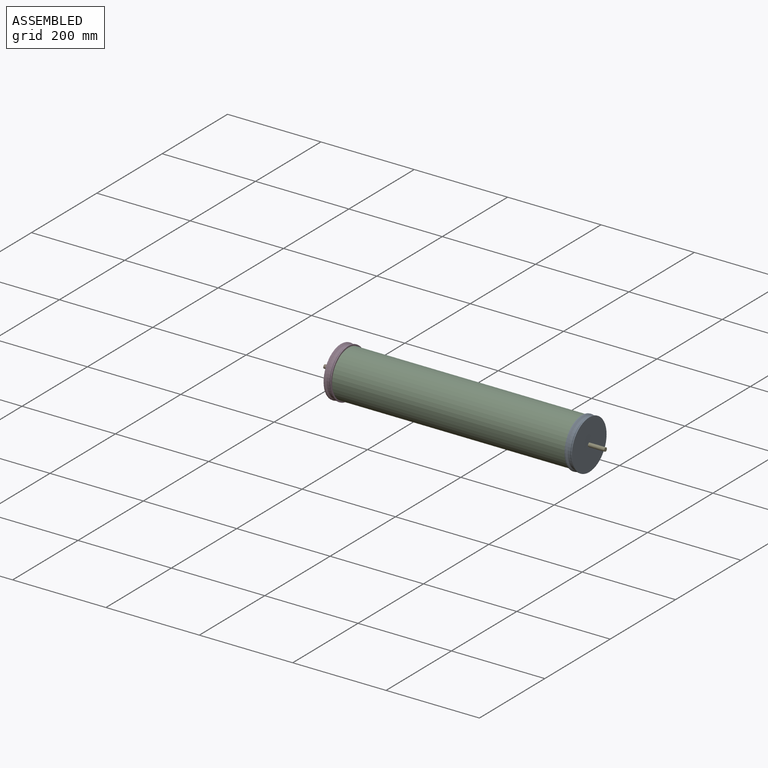
[diagram: assembled view]
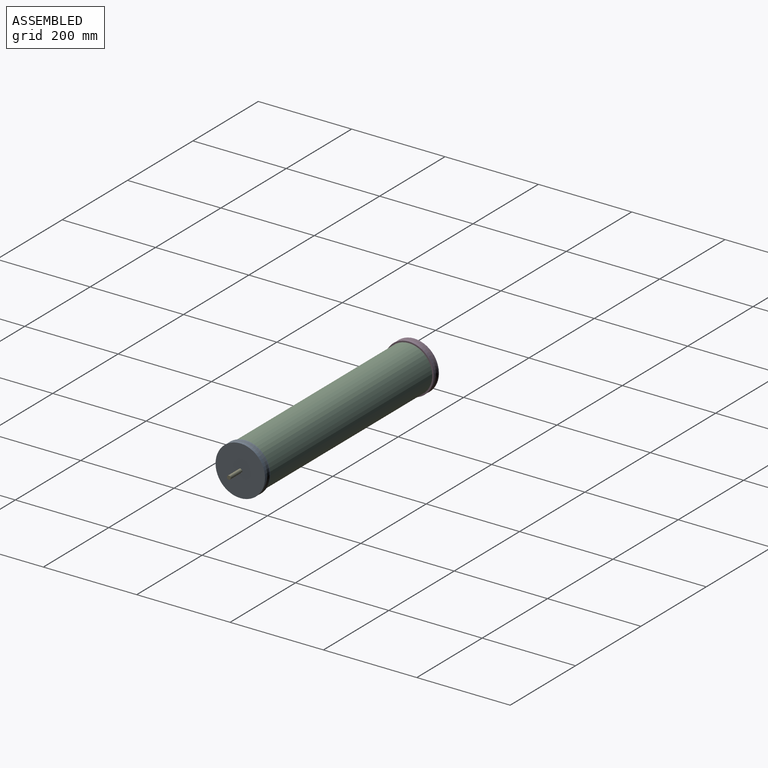
[diagram: assembled view, second angle]
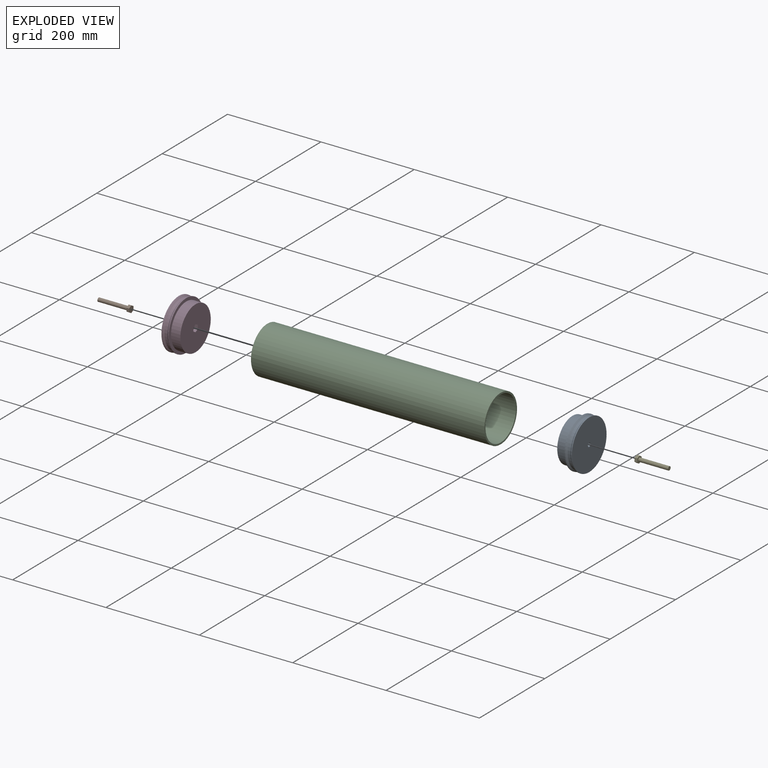
[diagram: exploded view]
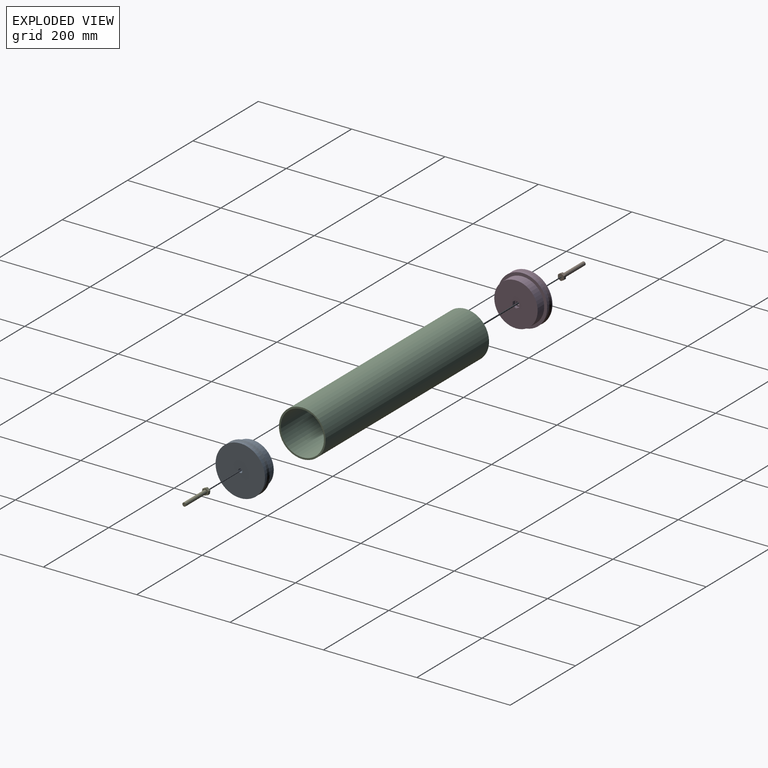
[diagram: exploded view, second angle]
ASSEMBLY  parts=5 mates=4
PART A: 17 faces, bbox 36x106x106 mm
  f0: cylinder r=4.25mm len=29mm, axis (1,0,0), area 774.4mm2, adj f8,f16
  f1: cylinder r=46.5mm len=93mm, axis (1,0,0), area 5843.4mm2, adj f2,f9
  f2: plane 106x106mm, normal (1,0,0), area 2031.8mm2, adj f1,f3
  f3: cylinder r=53mm len=106mm, axis (1,0,0), area 666mm2, adj f2,f4
  f4: cone r=53mm half-angle=45deg, axis (1,0,0), area 1372.9mm2, adj f3,f5
  f5: cylinder r=50mm len=100mm, axis (1,0,0), area 1885mm2, adj f4,f6
  f6: cone r=50mm half-angle=45deg, axis (-1,0,0), area 1372.9mm2, adj f5,f7
  f7: cylinder r=53mm len=106mm, axis (1,0,0), area 666mm2, adj f6,f8
  f8: plane 106x106mm, normal (-1,0,0), area 8768mm2, adj f0,f7
  f9: plane 93x93mm, normal (1,0,0), area 6635.1mm2, adj f1,f10,f11,f12,f13,f14,f15
  f10: plane 7x6.75mm, normal (0,0.5,0.87), area 54.6mm2, adj f9,f11,f15,f16
  f11: plane 7x6.75mm, normal (0,-0.5,0.87), area 54.6mm2, adj f9,f10,f12,f16
  f12: plane 7.79x7mm, normal (0,-1,0), area 54.6mm2, adj f9,f11,f13,f16
  f13: plane 7x6.75mm, normal (0,-0.5,-0.87), area 54.6mm2, adj f9,f12,f14,f16
  f14: plane 7x6.75mm, normal (0,0.5,-0.87), area 54.6mm2, adj f9,f13,f15,f16
  f15: plane 7.79x7mm, normal (0,1,0), area 54.6mm2, adj f9,f10,f14,f16
  f16: plane 15.59x13.5mm, normal (1,0,0), area 101.1mm2, adj f0,f10,f11,f12,f13,f14,f15
PART B: 10 faces, bbox 70x13x15 mm
  f0: plane 6.5x6mm, normal (0,-0.5,-0.87), area 45mm2, adj f1,f5,f6,f7
  f1: plane 6.5x6mm, normal (0,0.5,-0.87), area 45mm2, adj f0,f2,f6,f7
  f2: plane 7.51x6mm, normal (0,1,0), area 45mm2, adj f1,f3,f6,f7
  f3: plane 6.5x6mm, normal (0,0.5,0.87), area 45mm2, adj f2,f4,f6,f7
  f4: plane 6.5x6mm, normal (0,-0.5,0.87), area 45mm2, adj f3,f5,f6,f7
  f5: plane 7.51x6mm, normal (0,-1,0), area 45mm2, adj f0,f4,f6,f7
  f6: plane 15.01x13mm, normal (-1,0,0), area 96.1mm2, adj f0,f1,f2,f3,f4,f5,f8
  f7: plane 15.01x13mm, normal (1,0,0), area 146.4mm2, adj f0,f1,f2,f3,f4,f5
  f8: cylinder r=4mm len=64mm, axis (1,0,0), area 1608.5mm2, adj f6,f9
  f9: plane 8x8mm, normal (-1,0,0), area 50.3mm2, adj f8
PART C: 4 faces, bbox 500x100x100 mm
  f0: cylinder r=50mm len=500mm, axis (1,0,0), area 157079.6mm2, adj f1,f3
  f1: plane 100x100mm, normal (-1,0,0), area 1061.1mm2, adj f0,f2
  f2: cylinder r=46.5mm len=500mm, axis (1,0,0), area 146084.1mm2, adj f1,f3
  f3: plane 100x100mm, normal (1,0,0), area 1061.1mm2, adj f0,f2
PART D: same geometry as A
PART E: same geometry as B
PLACE A rot(axis=(0,1,0),180deg) t=(-332.21,-69.5,39.39)mm
PLACE B t=(166.79,-69.5,39.39)mm
PLACE C t=(167.79,-69.5,39.39)mm
PLACE D t=(167.79,-69.5,39.39)mm
PLACE E rot(axis=(0,-0.83,0.56),180deg) t=(-331.21,-69.5,39.39)mm
MATE revolute A.f0 <-> C.f0  axis (-1,0,0) through (167.79,-69.5,39.39)mm
MATE revolute D.f0 <-> B.f8  axis (1,0,0) through (-319.21,-69.5,39.39)mm
MATE revolute D.f0 <-> C.f0  axis (1,0,0) through (-332.21,-69.5,39.39)mm
MATE revolute A.f0 <-> E.f8  axis (-1,0,0) through (154.79,-69.5,39.39)mm
